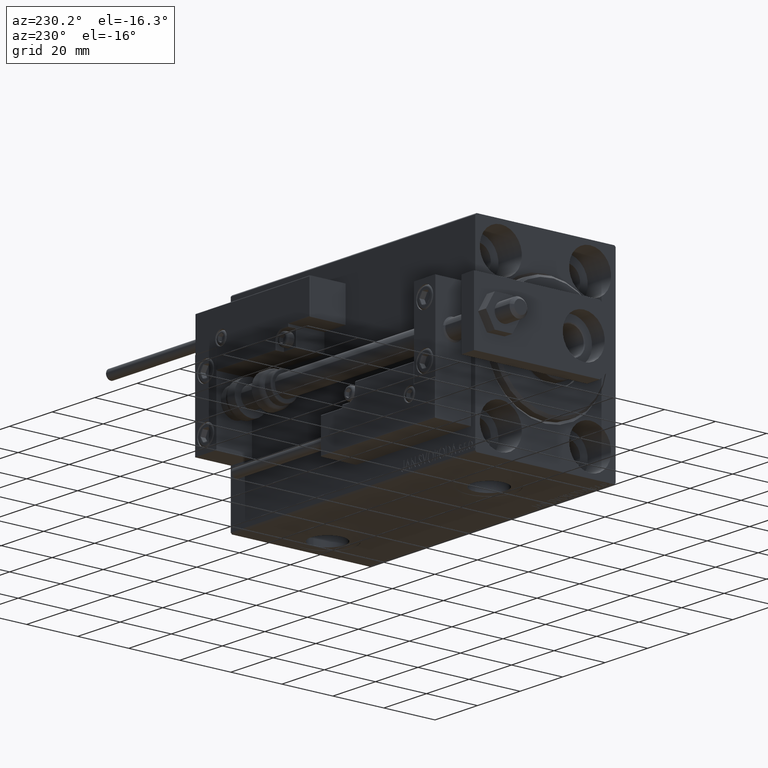
[diagram: clean part render]
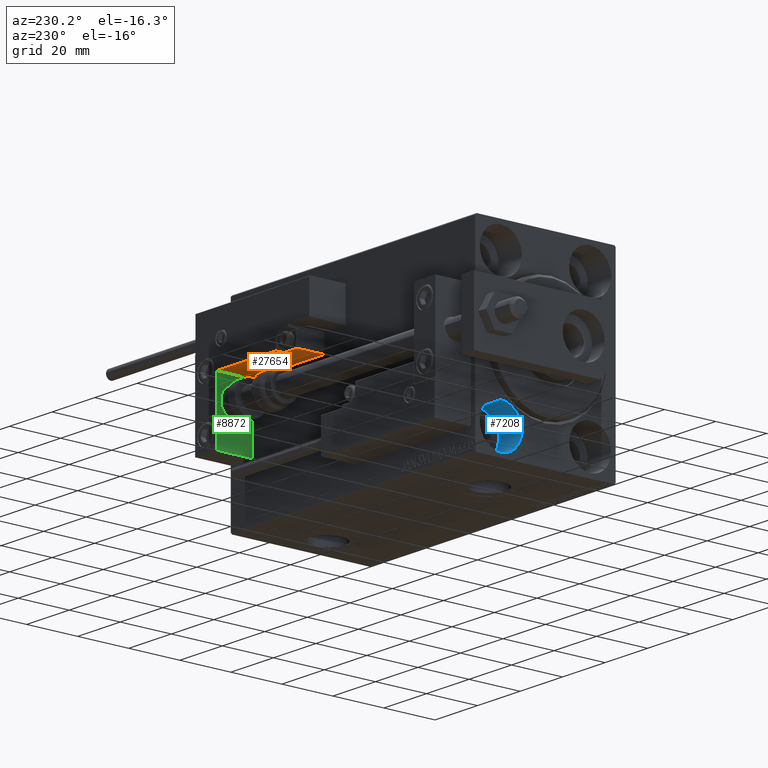
[diagram: same view with three faces highlighted in distinct colors, each labeled with its STEP entity id]
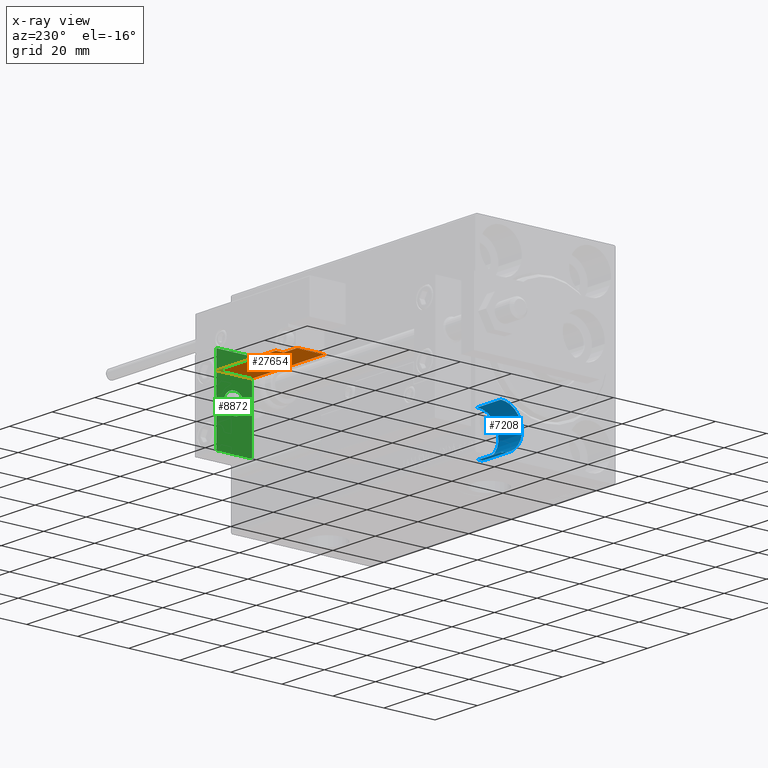
[diagram: x-ray of the same camera — body ghosted, the three highlighted faces saturated]
A machine part, auxiliary view with three faces highlighted in distinct colors.
The next image is the same camera in x-ray (body ghosted, the three faces saturated) — at least one of them is partly hidden behind the body in this view.
Their STEP definitions:

[orange] entity #27654 — the highlighted planar face has unit normal (0, 0, 1).
#362 = DIRECTION ( 'NONE',  ( 0.000000000000000000, -0.000000000000000000, 1.000000000000000000 ) ) ;
#396 = CARTESIAN_POINT ( 'NONE',  ( 16.99999999999999289, 3.252606517456513302E-15, 10.69999999999999929 ) ) ;
#584 = EDGE_CURVE ( 'NONE', #45295, #37967, #3598, .T. ) ;
#1623 = ORIENTED_EDGE ( 'NONE', *, *, #34692, .T. ) ;
#3044 = DIRECTION ( 'NONE',  ( 0.000000000000000000, 0.000000000000000000, 1.000000000000000000 ) ) ;
#3051 = ORIENTED_EDGE ( 'NONE', *, *, #25170, .T. ) ;
#3315 = CARTESIAN_POINT ( 'NONE',  ( -16.99999999999999289, 3.252606517456513302E-15, 0.000000000000000000 ) ) ;
#3598 = LINE ( 'NONE', #35417, #5795 ) ;
#5153 = LINE ( 'NONE', #21080, #32668 ) ;
#5795 = VECTOR ( 'NONE', #51544, 1000.000000000000000 ) ;
#5998 = CARTESIAN_POINT ( 'NONE',  ( 16.99999999999999289, 3.252606517456513302E-15, 0.000000000000000000 ) ) ;
#9093 = CARTESIAN_POINT ( 'NONE',  ( 10.70000000000000107, 3.252606517456513302E-15, 11.29999999999999893 ) ) ;
#9447 = VERTEX_POINT ( 'NONE', #396 ) ;
#10418 = LINE ( 'NONE', #33624, #26397 ) ;
#11028 = VECTOR ( 'NONE', #23937, 1000.000000000000000 ) ;
#11317 = CARTESIAN_POINT ( 'NONE',  ( 10.70000000000000107, 3.252606517456513302E-15, 14.00000000000000000 ) ) ;
#11391 = DIRECTION ( 'NONE',  ( -0.000000000000000000, -1.000000000000000000, -0.000000000000000000 ) ) ;
#11576 = VERTEX_POINT ( 'NONE', #5998 ) ;
#11937 = LINE ( 'NONE', #3315, #11028 ) ;
#11945 = EDGE_CURVE ( 'NONE', #20988, #15845, #15408, .T. ) ;
#12935 = ORIENTED_EDGE ( 'NONE', *, *, #33561, .T. ) ;
#13206 = DIRECTION ( 'NONE',  ( 0.000000000000000000, -0.000000000000000000, 1.000000000000000000 ) ) ;
#13340 = AXIS2_PLACEMENT_3D ( 'NONE', #40839, #17133, #13206 ) ;
#15408 = CIRCLE ( 'NONE', #42028, 0.5999999999999998668 ) ;
#15845 = VERTEX_POINT ( 'NONE', #40286 ) ;
#17133 = DIRECTION ( 'NONE',  ( 0.000000000000000000, 1.000000000000000000, 0.000000000000000000 ) ) ;
#17742 = CARTESIAN_POINT ( 'NONE',  ( -16.99999999999999289, 3.252606517456513302E-15, 0.000000000000000000 ) ) ;
#19305 = VECTOR ( 'NONE', #45692, 1000.000000000000000 ) ;
#20846 = EDGE_CURVE ( 'NONE', #37967, #50082, #10418, .T. ) ;
#20988 = VERTEX_POINT ( 'NONE', #9093 ) ;
#21080 = CARTESIAN_POINT ( 'NONE',  ( 11.00000000000000000, 3.252606517456513302E-15, 10.69999999999999929 ) ) ;
#22887 = CARTESIAN_POINT ( 'NONE',  ( 11.29999999999999893, 3.252606517456513302E-15, 11.29999999999999893 ) ) ;
#23331 = LINE ( 'NONE', #11317, #44871 ) ;
#23937 = DIRECTION ( 'NONE',  ( 1.000000000000000000, 0.000000000000000000, 0.000000000000000000 ) ) ;
#25170 = EDGE_CURVE ( 'NONE', #20988, #45295, #23331, .T. ) ;
#25696 = FACE_OUTER_BOUND ( 'NONE', #27970, .T. ) ;
#26397 = VECTOR ( 'NONE', #42490, 1000.000000000000000 ) ;
#27654 = ADVANCED_FACE ( 'NONE', ( #25696 ), #49138, .F. ) ;
#27965 = CARTESIAN_POINT ( 'NONE',  ( -16.99999999999999289, 3.252606517456513302E-15, 13.70000000000000107 ) ) ;
#27970 = EDGE_LOOP ( 'NONE', ( #29100, #1623, #49586, #3051, #49715, #46520, #12935 ) ) ;
#29100 = ORIENTED_EDGE ( 'NONE', *, *, #30510, .F. ) ;
#29811 = CARTESIAN_POINT ( 'NONE',  ( 16.99999999999999289, 3.252606517456513302E-15, 14.00000000000000000 ) ) ;
#30510 = EDGE_CURVE ( 'NONE', #9447, #11576, #33717, .T. ) ;
#32668 = VECTOR ( 'NONE', #49418, 1000.000000000000000 ) ;
#33561 = EDGE_CURVE ( 'NONE', #50082, #11576, #11937, .T. ) ;
#33624 = CARTESIAN_POINT ( 'NONE',  ( -16.99999999999999289, 3.252606517456513302E-15, 14.00000000000000000 ) ) ;
#33717 = LINE ( 'NONE', #29811, #19305 ) ;
#34692 = EDGE_CURVE ( 'NONE', #9447, #15845, #5153, .T. ) ;
#35417 = CARTESIAN_POINT ( 'NONE',  ( -16.99999999999999289, 3.252606517456513302E-15, 13.70000000000000107 ) ) ;
#37967 = VERTEX_POINT ( 'NONE', #27965 ) ;
#40286 = CARTESIAN_POINT ( 'NONE',  ( 11.29999999999999893, 3.252606517456513302E-15, 10.69999999999999929 ) ) ;
#40839 = CARTESIAN_POINT ( 'NONE',  ( -16.99999999999999289, 3.252606517456513302E-15, 14.00000000000000000 ) ) ;
#42028 = AXIS2_PLACEMENT_3D ( 'NONE', #22887, #11391, #3044 ) ;
#42490 = DIRECTION ( 'NONE',  ( -0.000000000000000000, -0.000000000000000000, -1.000000000000000000 ) ) ;
#44871 = VECTOR ( 'NONE', #362, 1000.000000000000000 ) ;
#45295 = VERTEX_POINT ( 'NONE', #50984 ) ;
#45692 = DIRECTION ( 'NONE',  ( -0.000000000000000000, -0.000000000000000000, -1.000000000000000000 ) ) ;
#46520 = ORIENTED_EDGE ( 'NONE', *, *, #20846, .T. ) ;
#49138 = PLANE ( 'NONE',  #13340 ) ;
#49418 = DIRECTION ( 'NONE',  ( -1.000000000000000000, 0.000000000000000000, -0.000000000000000000 ) ) ;
#49586 = ORIENTED_EDGE ( 'NONE', *, *, #11945, .F. ) ;
#49715 = ORIENTED_EDGE ( 'NONE', *, *, #584, .T. ) ;
#50082 = VERTEX_POINT ( 'NONE', #17742 ) ;
#50984 = CARTESIAN_POINT ( 'NONE',  ( 10.70000000000000107, 3.252606517456513302E-15, 13.70000000000000107 ) ) ;
#51544 = DIRECTION ( 'NONE',  ( -1.000000000000000000, 0.000000000000000000, -0.000000000000000000 ) ) ;

[blue] entity #7208 — the highlighted cylindrical surface (edge-blend (fillet) strip) has radius 8.25 mm, axis along (-1, -0, -0).
#398 = CARTESIAN_POINT ( 'NONE',  ( 11.00000000000000000, 17.49999999999999645, -35.75000000000000711 ) ) ;
#4350 = CARTESIAN_POINT ( 'NONE',  ( 0.000000000000000000, 17.49999999999999645, -27.50000000000000355 ) ) ;
#5400 = CARTESIAN_POINT ( 'NONE',  ( 0.000000000000000000, 17.49999999999999645, -35.75000000000000711 ) ) ;
#6078 = CARTESIAN_POINT ( 'NONE',  ( 11.00000000000000000, 17.49999999999999645, -19.25000000000000355 ) ) ;
#6193 = CARTESIAN_POINT ( 'NONE',  ( 11.00000000000000000, 17.49999999999999645, -35.75000000000000711 ) ) ;
#6829 = EDGE_LOOP ( 'NONE', ( #13946, #32414, #27857, #18073 ) ) ;
#7208 = ADVANCED_FACE ( 'NONE', ( #44910 ), #40522, .F. ) ;
#7707 = DIRECTION ( 'NONE',  ( -1.000000000000000000, 0.000000000000000000, 0.000000000000000000 ) ) ;
#12887 = VERTEX_POINT ( 'NONE', #22891 ) ;
#12949 = DIRECTION ( 'NONE',  ( 0.000000000000000000, 0.000000000000000000, 1.000000000000000000 ) ) ;
#13946 = ORIENTED_EDGE ( 'NONE', *, *, #34780, .F. ) ;
#14029 = LINE ( 'NONE', #6193, #31558 ) ;
#17084 = LINE ( 'NONE', #6078, #35870 ) ;
#17326 = DIRECTION ( 'NONE',  ( -1.000000000000000000, -0.000000000000000000, -0.000000000000000000 ) ) ;
#18073 = ORIENTED_EDGE ( 'NONE', *, *, #28759, .F. ) ;
#19987 = CARTESIAN_POINT ( 'NONE',  ( 11.00000000000000000, 17.49999999999999645, -27.50000000000000355 ) ) ;
#20712 = CARTESIAN_POINT ( 'NONE',  ( 0.000000000000000000, 17.49999999999999645, -19.25000000000000355 ) ) ;
#22891 = CARTESIAN_POINT ( 'NONE',  ( 11.00000000000000000, 17.49999999999999645, -19.25000000000000355 ) ) ;
#24155 = DIRECTION ( 'NONE',  ( 0.000000000000000000, 0.000000000000000000, 1.000000000000000000 ) ) ;
#24855 = EDGE_CURVE ( 'NONE', #34831, #39663, #14029, .T. ) ;
#24878 = DIRECTION ( 'NONE',  ( 0.000000000000000000, 0.000000000000000000, 1.000000000000000000 ) ) ;
#26523 = DIRECTION ( 'NONE',  ( -1.000000000000000000, -0.000000000000000000, -0.000000000000000000 ) ) ;
#27857 = ORIENTED_EDGE ( 'NONE', *, *, #45315, .T. ) ;
#28759 = EDGE_CURVE ( 'NONE', #12887, #33034, #17084, .T. ) ;
#28901 = AXIS2_PLACEMENT_3D ( 'NONE', #4350, #44966, #12949 ) ;
#29694 = CIRCLE ( 'NONE', #28901, 8.250000000000000000 ) ;
#31558 = VECTOR ( 'NONE', #26523, 1000.000000000000000 ) ;
#32414 = ORIENTED_EDGE ( 'NONE', *, *, #24855, .T. ) ;
#33034 = VERTEX_POINT ( 'NONE', #20712 ) ;
#34780 = EDGE_CURVE ( 'NONE', #34831, #12887, #50112, .T. ) ;
#34831 = VERTEX_POINT ( 'NONE', #398 ) ;
#35870 = VECTOR ( 'NONE', #17326, 1000.000000000000000 ) ;
#36061 = AXIS2_PLACEMENT_3D ( 'NONE', #36867, #36614, #24878 ) ;
#36614 = DIRECTION ( 'NONE',  ( -1.000000000000000000, -0.000000000000000000, -0.000000000000000000 ) ) ;
#36867 = CARTESIAN_POINT ( 'NONE',  ( 11.00000000000000000, 17.49999999999999645, -27.50000000000000355 ) ) ;
#39663 = VERTEX_POINT ( 'NONE', #5400 ) ;
#40522 = CYLINDRICAL_SURFACE ( 'NONE', #36061, 8.250000000000000000 ) ;
#42621 = AXIS2_PLACEMENT_3D ( 'NONE', #19987, #7707, #24155 ) ;
#44910 = FACE_OUTER_BOUND ( 'NONE', #6829, .T. ) ;
#44966 = DIRECTION ( 'NONE',  ( -1.000000000000000000, 0.000000000000000000, 0.000000000000000000 ) ) ;
#45315 = EDGE_CURVE ( 'NONE', #39663, #33034, #29694, .T. ) ;
#50112 = CIRCLE ( 'NONE', #42621, 8.250000000000000000 ) ;

[green] entity #8872 — the highlighted planar face has unit normal (-1, 0, 0).
#1220 = CARTESIAN_POINT ( 'NONE',  ( 0.000000000000000000, 0.000000000000000000, 0.000000000000000000 ) ) ;
#2574 = VERTEX_POINT ( 'NONE', #15023 ) ;
#3126 = AXIS2_PLACEMENT_3D ( 'NONE', #39717, #12080, #31624 ) ;
#4523 = VECTOR ( 'NONE', #10634, 1000.000000000000000 ) ;
#5077 = PLANE ( 'NONE',  #49407 ) ;
#5292 = EDGE_LOOP ( 'NONE', ( #50089, #36999, #18123, #46821 ) ) ;
#5350 = EDGE_LOOP ( 'NONE', ( #24728, #30577 ) ) ;
#5594 = VECTOR ( 'NONE', #9807, 1000.000000000000000 ) ;
#6140 = VECTOR ( 'NONE', #44121, 1000.000000000000000 ) ;
#6846 = CARTESIAN_POINT ( 'NONE',  ( 0.000000000000000000, 7.000000000000000000, -16.00000000000000711 ) ) ;
#8872 = ADVANCED_FACE ( 'NONE', ( #13412, #8988 ), #5077, .T. ) ;
#8954 = CIRCLE ( 'NONE', #3126, 4.000000000000000000 ) ;
#8988 = FACE_OUTER_BOUND ( 'NONE', #5292, .T. ) ;
#9611 = DIRECTION ( 'NONE',  ( 0.000000000000000000, -1.000000000000000000, 0.000000000000000000 ) ) ;
#9807 = DIRECTION ( 'NONE',  ( 0.000000000000000000, -1.000000000000000000, 0.000000000000000000 ) ) ;
#10634 = DIRECTION ( 'NONE',  ( 0.000000000000000000, 0.000000000000000000, -1.000000000000000000 ) ) ;
#12080 = DIRECTION ( 'NONE',  ( -1.000000000000000000, -0.000000000000000000, -0.000000000000000000 ) ) ;
#12738 = CARTESIAN_POINT ( 'NONE',  ( 0.000000000000000000, -7.000000000000000000, 15.99999999999999289 ) ) ;
#13412 = FACE_BOUND ( 'NONE', #5350, .T. ) ;
#15023 = CARTESIAN_POINT ( 'NONE',  ( 0.000000000000000000, 0.000000000000000000, 4.000000000000000000 ) ) ;
#16689 = EDGE_CURVE ( 'NONE', #46716, #42025, #21813, .T. ) ;
#17267 = AXIS2_PLACEMENT_3D ( 'NONE', #1220, #41624, #33032 ) ;
#17388 = VERTEX_POINT ( 'NONE', #12738 ) ;
#17495 = EDGE_CURVE ( 'NONE', #29729, #2574, #42219, .T. ) ;
#18123 = ORIENTED_EDGE ( 'NONE', *, *, #38642, .T. ) ;
#18607 = EDGE_CURVE ( 'NONE', #2574, #29729, #8954, .T. ) ;
#20970 = CARTESIAN_POINT ( 'NONE',  ( 0.000000000000000000, -7.000000000000000000, -16.00000000000000711 ) ) ;
#21005 = DIRECTION ( 'NONE',  ( -0.000000000000000000, 0.000000000000000000, 1.000000000000000000 ) ) ;
#21813 = LINE ( 'NONE', #48906, #5594 ) ;
#24728 = ORIENTED_EDGE ( 'NONE', *, *, #18607, .F. ) ;
#24899 = DIRECTION ( 'NONE',  ( -1.000000000000000000, 0.000000000000000000, -0.000000000000000000 ) ) ;
#25040 = VECTOR ( 'NONE', #9611, 1000.000000000000000 ) ;
#26291 = LINE ( 'NONE', #38275, #4523 ) ;
#28235 = LINE ( 'NONE', #44379, #6140 ) ;
#29277 = EDGE_CURVE ( 'NONE', #34744, #17388, #37514, .T. ) ;
#29298 = CARTESIAN_POINT ( 'NONE',  ( 0.000000000000000000, 0.000000000000000000, 0.000000000000000000 ) ) ;
#29729 = VERTEX_POINT ( 'NONE', #35873 ) ;
#30577 = ORIENTED_EDGE ( 'NONE', *, *, #17495, .F. ) ;
#30645 = CARTESIAN_POINT ( 'NONE',  ( 0.000000000000000000, 7.000000000000000000, 15.99999999999999289 ) ) ;
#31624 = DIRECTION ( 'NONE',  ( 0.000000000000000000, 0.000000000000000000, 1.000000000000000000 ) ) ;
#33032 = DIRECTION ( 'NONE',  ( 0.000000000000000000, 0.000000000000000000, 1.000000000000000000 ) ) ;
#34744 = VERTEX_POINT ( 'NONE', #30645 ) ;
#35873 = CARTESIAN_POINT ( 'NONE',  ( 0.000000000000000000, 4.898587196589412829E-16, -4.000000000000000000 ) ) ;
#36999 = ORIENTED_EDGE ( 'NONE', *, *, #29277, .F. ) ;
#37514 = LINE ( 'NONE', #48469, #25040 ) ;
#38275 = CARTESIAN_POINT ( 'NONE',  ( 0.000000000000000000, 7.000000000000000000, 15.99999999999999289 ) ) ;
#38642 = EDGE_CURVE ( 'NONE', #34744, #46716, #26291, .T. ) ;
#39010 = EDGE_CURVE ( 'NONE', #17388, #42025, #28235, .T. ) ;
#39717 = CARTESIAN_POINT ( 'NONE',  ( 0.000000000000000000, 0.000000000000000000, 0.000000000000000000 ) ) ;
#41624 = DIRECTION ( 'NONE',  ( -1.000000000000000000, -0.000000000000000000, -0.000000000000000000 ) ) ;
#42025 = VERTEX_POINT ( 'NONE', #20970 ) ;
#42219 = CIRCLE ( 'NONE', #17267, 4.000000000000000000 ) ;
#44121 = DIRECTION ( 'NONE',  ( 0.000000000000000000, 0.000000000000000000, -1.000000000000000000 ) ) ;
#44379 = CARTESIAN_POINT ( 'NONE',  ( 0.000000000000000000, -7.000000000000000000, 15.99999999999999289 ) ) ;
#46716 = VERTEX_POINT ( 'NONE', #6846 ) ;
#46821 = ORIENTED_EDGE ( 'NONE', *, *, #16689, .T. ) ;
#48469 = CARTESIAN_POINT ( 'NONE',  ( 0.000000000000000000, 7.000000000000000000, 15.99999999999999289 ) ) ;
#48906 = CARTESIAN_POINT ( 'NONE',  ( 0.000000000000000000, 7.000000000000000000, -16.00000000000000711 ) ) ;
#49407 = AXIS2_PLACEMENT_3D ( 'NONE', #29298, #24899, #21005 ) ;
#50089 = ORIENTED_EDGE ( 'NONE', *, *, #39010, .F. ) ;